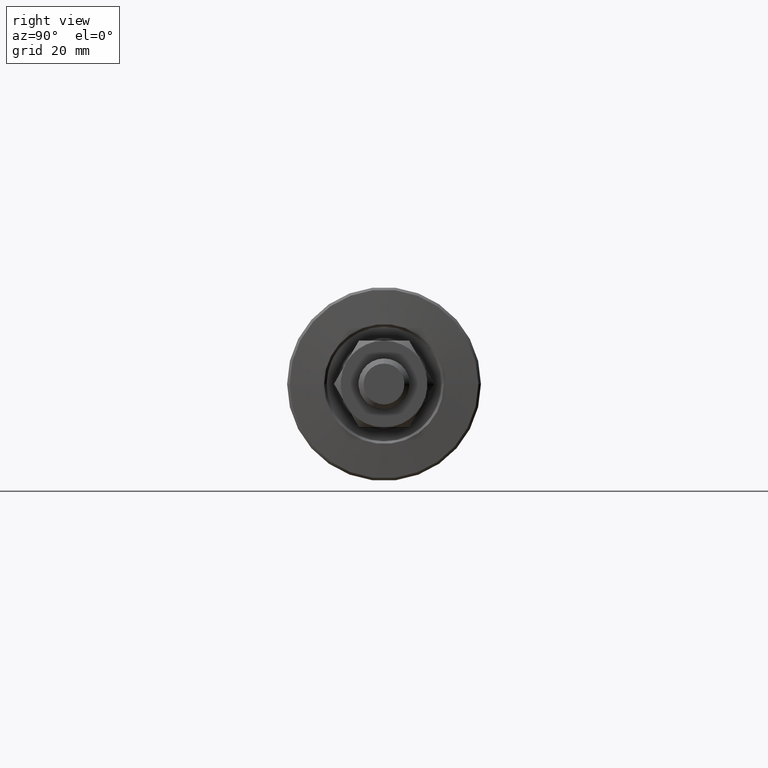
[diagram: clean part render]
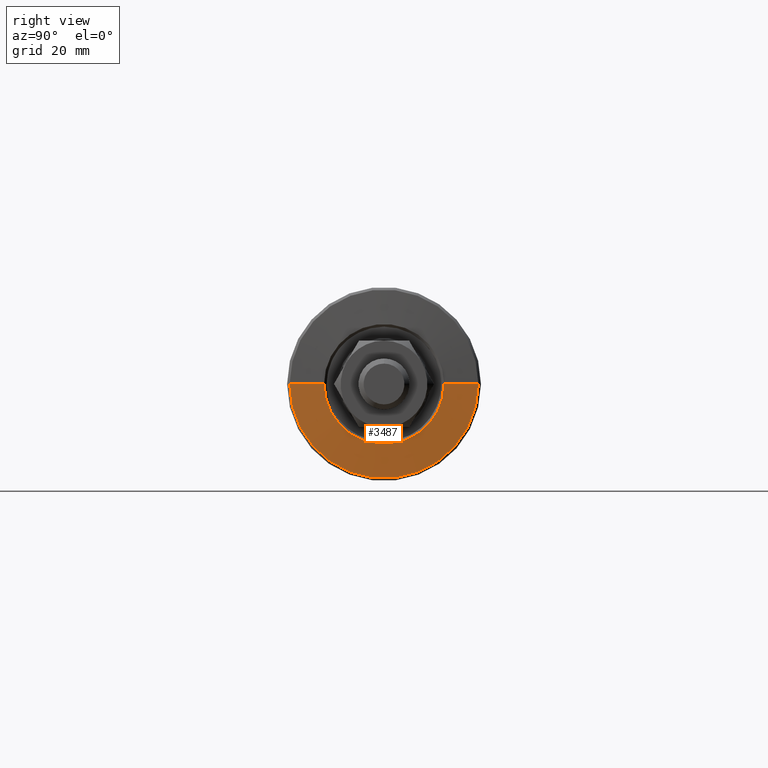
[diagram: same view with one face highlighted and labeled with its STEP entity id]
A machine part, right view. The second image highlights one B-rep face of the part: STEP entity #3487.
In plain terms, the highlighted conical surface has half-angle 86.597 deg.
Its self-contained STEP definition (entity closure, byte-faithful):
#45 = ORIENTED_EDGE ( 'NONE', *, *, #3944, .T. ) ;
#167 = CONICAL_SURFACE ( 'NONE', #2421, 18.49999999999993960, 1.511406790602499939 ) ;
#255 = DIRECTION ( 'NONE',  ( -9.845727836625153594E-16, -1.000000000000000000, 0.000000000000000000 ) ) ;
#371 = DIRECTION ( 'NONE',  ( -0.05935463004165866113, -0.9982369597909195313, 0.000000000000000000 ) ) ;
#394 = VERTEX_POINT ( 'NONE', #1398 ) ;
#482 = AXIS2_PLACEMENT_3D ( 'NONE', #2685, #1184, #1484 ) ;
#856 = CARTESIAN_POINT ( 'NONE',  ( -1.100000000000652456, -2.862584134360218609E-14, 0.000000000000000000 ) ) ;
#863 = DIRECTION ( 'NONE',  ( -9.845727836625153594E-16, -1.000000000000000000, 0.000000000000000000 ) ) ;
#1068 = ORIENTED_EDGE ( 'NONE', *, *, #1096, .F. ) ;
#1096 = EDGE_CURVE ( 'NONE', #1635, #1795, #3831, .T. ) ;
#1110 = VECTOR ( 'NONE', #2238, 1000.000000000000000 ) ;
#1184 = DIRECTION ( 'NONE',  ( -1.000000000000000000, 9.810081908519753690E-16, -0.000000000000000000 ) ) ;
#1398 = CARTESIAN_POINT ( 'NONE',  ( -0.6985962339401801113, -11.74911847989550573, 0.000000000000000000 ) ) ;
#1469 = ORIENTED_EDGE ( 'NONE', *, *, #2916, .F. ) ;
#1484 = DIRECTION ( 'NONE',  ( -9.781621530169970631E-16, -1.000000000000000000, 0.000000000000000000 ) ) ;
#1635 = VERTEX_POINT ( 'NONE', #3928 ) ;
#1781 = DIRECTION ( 'NONE',  ( -1.000000000000000000, 9.810081908519753690E-16, -0.000000000000000000 ) ) ;
#1795 = VERTEX_POINT ( 'NONE', #3750 ) ;
#1839 = AXIS2_PLACEMENT_3D ( 'NONE', #3608, #3953, #863 ) ;
#1901 = LINE ( 'NONE', #3490, #3528 ) ;
#2238 = DIRECTION ( 'NONE',  ( -0.05935463004165669743, 0.9982369597909196424, 1.222487697598534734E-16 ) ) ;
#2323 = FACE_OUTER_BOUND ( 'NONE', #2886, .T. ) ;
#2372 = EDGE_CURVE ( 'NONE', #394, #2419, #1901, .T. ) ;
#2419 = VERTEX_POINT ( 'NONE', #3311 ) ;
#2421 = AXIS2_PLACEMENT_3D ( 'NONE', #856, #1781, #255 ) ;
#2505 = ORIENTED_EDGE ( 'NONE', *, *, #2372, .T. ) ;
#2677 = CIRCLE ( 'NONE', #1839, 18.49999999999993960 ) ;
#2685 = CARTESIAN_POINT ( 'NONE',  ( -0.6985962339401685650, -2.901962172594635549E-14, 0.000000000000000000 ) ) ;
#2872 = CIRCLE ( 'NONE', #482, 11.74911847989547731 ) ;
#2886 = EDGE_LOOP ( 'NONE', ( #1068, #45, #2505, #1469 ) ) ;
#2916 = EDGE_CURVE ( 'NONE', #1795, #2419, #2677, .T. ) ;
#3311 = CARTESIAN_POINT ( 'NONE',  ( -1.100000000000670664, -18.49999999999996803, 0.000000000000000000 ) ) ;
#3487 = ADVANCED_FACE ( 'NONE', ( #2323 ), #167, .T. ) ;
#3490 = CARTESIAN_POINT ( 'NONE',  ( -1.100000000000670664, -18.49999999999996803, 0.000000000000000000 ) ) ;
#3528 = VECTOR ( 'NONE', #371, 1000.000000000000114 ) ;
#3608 = CARTESIAN_POINT ( 'NONE',  ( -1.100000000000652456, -2.862584134360218609E-14, 0.000000000000000000 ) ) ;
#3750 = CARTESIAN_POINT ( 'NONE',  ( -1.100000000000634248, 18.49999999999991118, 2.296212748401282056E-15 ) ) ;
#3831 = LINE ( 'NONE', #3854, #1110 ) ;
#3854 = CARTESIAN_POINT ( 'NONE',  ( -1.100000000000634248, 18.49999999999991118, 2.265596578422596297E-15 ) ) ;
#3928 = CARTESIAN_POINT ( 'NONE',  ( -0.6985962339401570187, 11.74911847989544711, 1.852224306171648525E-15 ) ) ;
#3944 = EDGE_CURVE ( 'NONE', #1635, #394, #2872, .T. ) ;
#3953 = DIRECTION ( 'NONE',  ( -1.000000000000000000, 9.810081908519753690E-16, -0.000000000000000000 ) ) ;